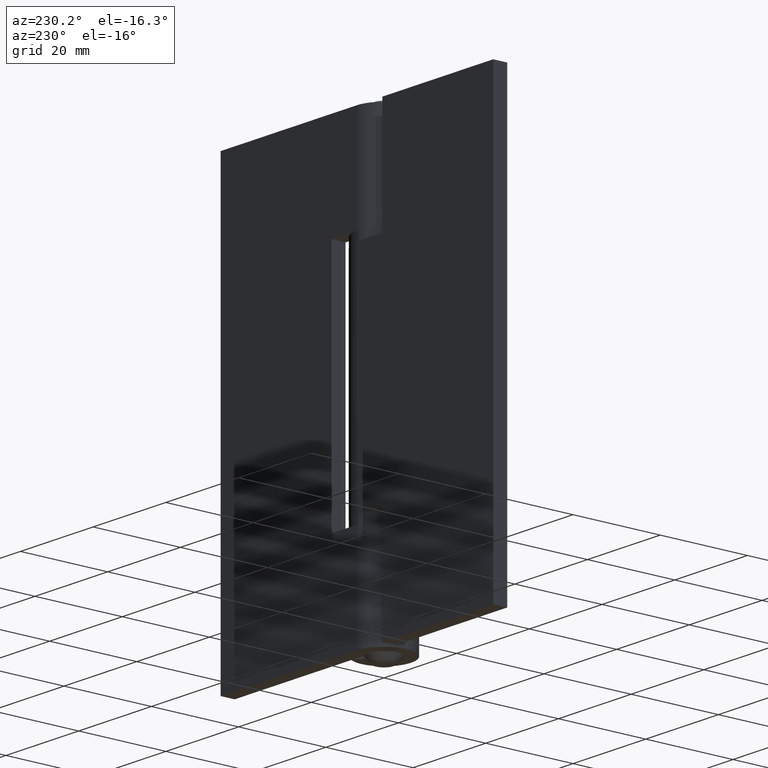
[diagram: clean part render]
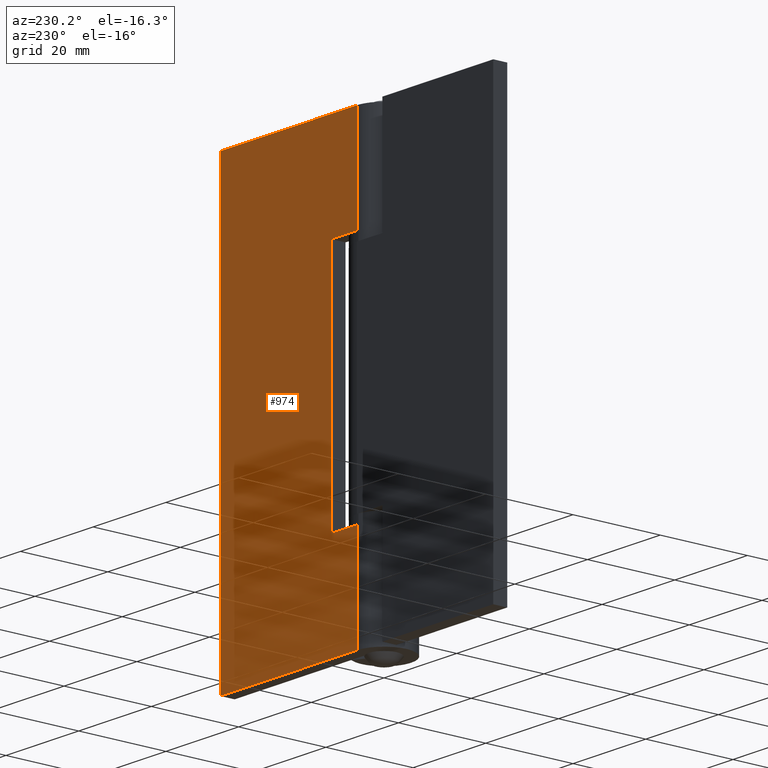
[diagram: same view with one face highlighted and labeled with its STEP entity id]
A machine part, auxiliary view. The second image highlights one B-rep face of the part: STEP entity #974.
In plain terms, the highlighted face is a freeform B-spline surface patch.
Its self-contained STEP definition (entity closure, byte-faithful):
#507=CARTESIAN_POINT('',(7.000000000000100,6.200001000000000,23.0));
#508=VERTEX_POINT('',#507);
#514=CARTESIAN_POINT('',(-1.138884E-015,6.200001000000000,23.0));
#515=VERTEX_POINT('',#514);
#516=CARTESIAN_POINT('',(7.000000000000100,6.200001000000000,23.0));
#517=CARTESIAN_POINT('',(-1.138884E-015,6.200001000000000,23.0));
#518=QUASI_UNIFORM_CURVE('',1,(#516,#517),.UNSPECIFIED.,.F.,.U.);
#519=EDGE_CURVE('',#508,#515,#518,.T.);
#583=CARTESIAN_POINT('',(7.000000000000100,6.200001000000000,77.0));
#584=VERTEX_POINT('',#583);
#590=CARTESIAN_POINT('',(7.000000000000100,6.200001000000000,77.0));
#591=CARTESIAN_POINT('',(7.000000000000100,6.200001000000000,23.0));
#592=QUASI_UNIFORM_CURVE('',1,(#590,#591),.UNSPECIFIED.,.F.,.U.);
#593=EDGE_CURVE('',#584,#508,#592,.T.);
#639=CARTESIAN_POINT('',(0.0,6.200001000000000,77.0));
#640=VERTEX_POINT('',#639);
#660=CARTESIAN_POINT('',(0.0,6.200001000000000,77.0));
#661=CARTESIAN_POINT('',(7.000000000000100,6.200001000000000,77.0));
#662=QUASI_UNIFORM_CURVE('',1,(#660,#661),.UNSPECIFIED.,.F.,.U.);
#663=EDGE_CURVE('',#640,#584,#662,.T.);
#674=CARTESIAN_POINT('',(-1.138884E-015,6.200001000000000,0.0));
#675=VERTEX_POINT('',#674);
#676=CARTESIAN_POINT('',(37.500006999999997,6.200001000000000,0.0));
#677=VERTEX_POINT('',#676);
#678=CARTESIAN_POINT('',(-1.138884E-015,6.200001000000000,0.0));
#679=CARTESIAN_POINT('',(37.500006999999997,6.200001000000000,0.0));
#680=QUASI_UNIFORM_CURVE('',1,(#678,#679),.UNSPECIFIED.,.F.,.U.);
#681=EDGE_CURVE('',#675,#677,#680,.T.);
#752=CARTESIAN_POINT('',(-1.138884E-015,6.200001000000000,100.0));
#753=VERTEX_POINT('',#752);
#754=CARTESIAN_POINT('',(37.500006999999997,6.200001000000000,100.0));
#755=VERTEX_POINT('',#754);
#756=CARTESIAN_POINT('',(-1.138884E-015,6.200001000000000,100.0));
#757=CARTESIAN_POINT('',(37.500006999999997,6.200001000000000,100.0));
#758=QUASI_UNIFORM_CURVE('',1,(#756,#757),.UNSPECIFIED.,.F.,.U.);
#759=EDGE_CURVE('',#753,#755,#758,.T.);
#847=CARTESIAN_POINT('',(-1.138884E-015,6.200001000000000,100.0));
#848=CARTESIAN_POINT('',(0.0,6.200001000000000,77.0));
#849=QUASI_UNIFORM_CURVE('',1,(#847,#848),.UNSPECIFIED.,.F.,.U.);
#850=EDGE_CURVE('',#753,#640,#849,.T.);
#945=CARTESIAN_POINT('',(37.500006999999997,6.200001000000000,100.0));
#946=CARTESIAN_POINT('',(37.500006999999997,6.200001000000000,0.0));
#947=QUASI_UNIFORM_CURVE('',1,(#945,#946),.UNSPECIFIED.,.F.,.U.);
#948=EDGE_CURVE('',#755,#677,#947,.T.);
#955=CARTESIAN_POINT('',(-1.873125276967711,6.200001000000000,-4.994999806180597));
#956=CARTESIAN_POINT('',(-1.873125276967711,6.200001000000000,104.995002488389600));
#957=CARTESIAN_POINT('',(39.373133282796303,6.200001000000000,-4.994999806180597));
#958=CARTESIAN_POINT('',(39.373133282796289,6.200001000000000,104.995002488389600));
#959=B_SPLINE_SURFACE_WITH_KNOTS('',1,1,((#955,#957),(#956,#958)),.UNSPECIFIED.,.F.,.F.,.U.,(2,2),(2,2),(0.0,109.990002294570200),(0.0,41.246258559764009),.UNSPECIFIED.);
#960=ORIENTED_EDGE('',*,*,#663,.F.);
#961=ORIENTED_EDGE('',*,*,#850,.F.);
#962=ORIENTED_EDGE('',*,*,#759,.T.);
#963=ORIENTED_EDGE('',*,*,#948,.T.);
#964=ORIENTED_EDGE('',*,*,#681,.F.);
#965=CARTESIAN_POINT('',(-1.138884E-015,6.200001000000000,23.0));
#966=CARTESIAN_POINT('',(-1.138884E-015,6.200001000000000,0.0));
#967=QUASI_UNIFORM_CURVE('',1,(#965,#966),.UNSPECIFIED.,.F.,.U.);
#968=EDGE_CURVE('',#515,#675,#967,.T.);
#969=ORIENTED_EDGE('',*,*,#968,.F.);
#970=ORIENTED_EDGE('',*,*,#519,.F.);
#971=ORIENTED_EDGE('',*,*,#593,.F.);
#972=EDGE_LOOP('',(#960,#961,#962,#963,#964,#969,#970,#971));
#973=FACE_OUTER_BOUND('',#972,.T.);
#974=ADVANCED_FACE('',(#973),#959,.T.);